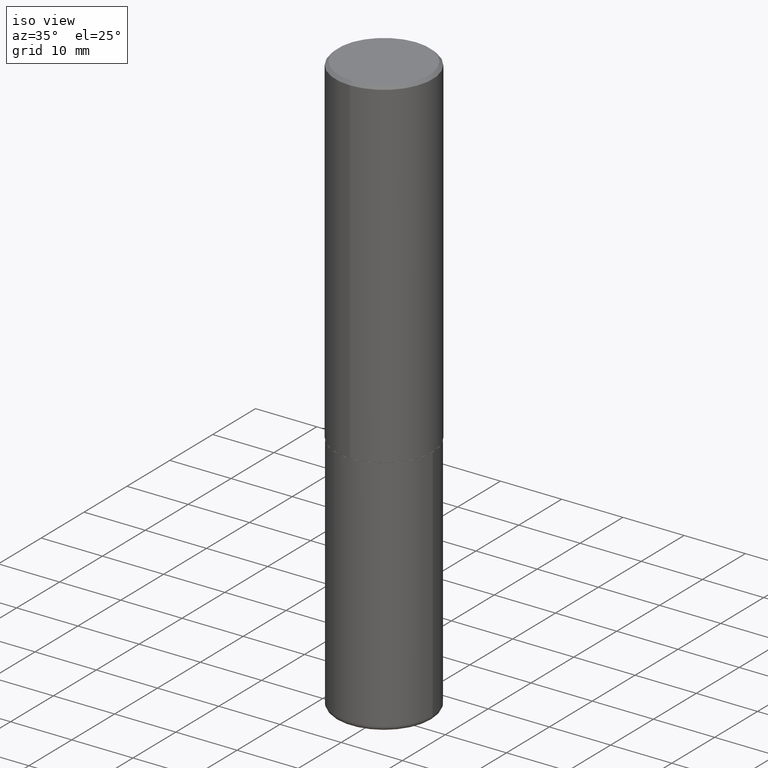
[diagram: clean part render]
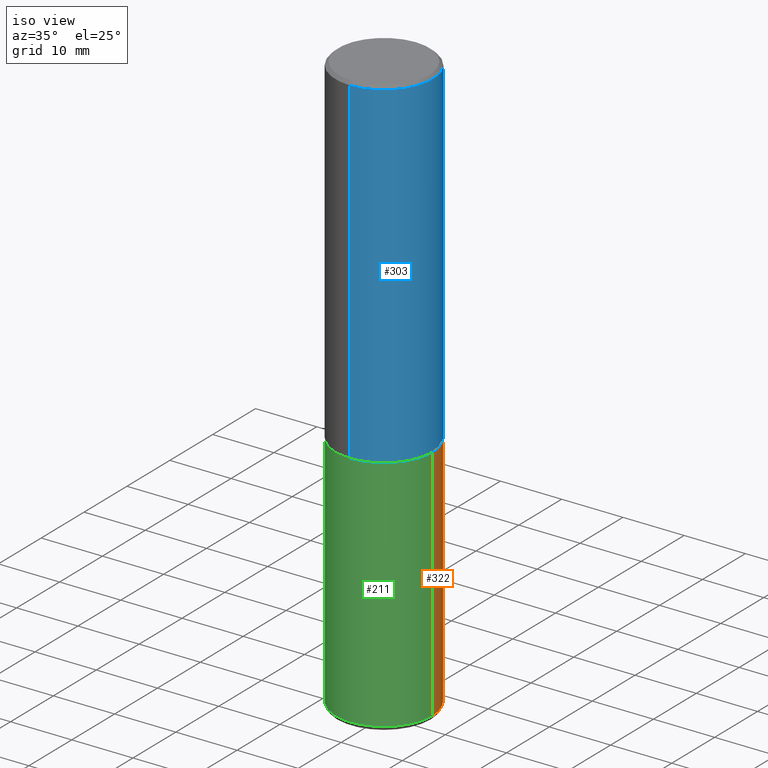
[diagram: same view with three faces highlighted in distinct colors, each labeled with its STEP entity id]
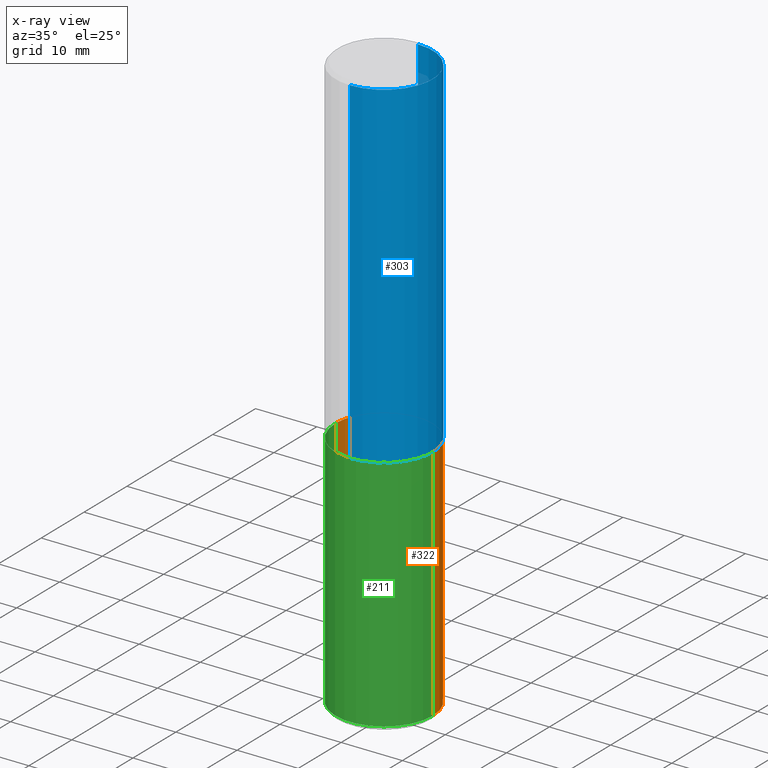
[diagram: x-ray of the same camera — body ghosted, the three highlighted faces saturated]
A machine part, iso view with three faces highlighted in distinct colors.
The next image is the same camera in x-ray (body ghosted, the three faces saturated) — at least one of them is partly hidden behind the body in this view.
Their STEP definitions:

[orange] entity #322 — the highlighted cylindrical surface (partial cylindrical patch) has radius 7.9375 mm, axis along (-0, 0, 1).
#9 = DIRECTION ( 'NONE',  ( -2.445468806185136597E-29, 3.491481338843145583E-15, 1.000000000000000000 ) ) ;
#19 = CIRCLE ( 'NONE', #349, 0.3125000000000000000 ) ;
#34 = AXIS2_PLACEMENT_3D ( 'NONE', #298, #9, #43 ) ;
#35 = ORIENTED_EDGE ( 'NONE', *, *, #240, .T. ) ;
#36 = CARTESIAN_POINT ( 'NONE',  ( 0.3125000000000001665, -1.517048641727345766E-14, -3.719999999999999751 ) ) ;
#38 = CARTESIAN_POINT ( 'NONE',  ( 0.000000000000000000, 0.000000000000000000, 0.000000000000000000 ) ) ;
#43 = DIRECTION ( 'NONE',  ( 1.000000000000000000, -6.982962677686269077E-15, 0.000000000000000000 ) ) ;
#45 = LINE ( 'NONE', #173, #84 ) ;
#71 = CARTESIAN_POINT ( 'NONE',  ( -0.3125000000000000000, -8.092516955357627487E-15, -2.187500000000000000 ) ) ;
#76 = CARTESIAN_POINT ( 'NONE',  ( 0.3125000000000000000, -2.182175836776958347E-15, 1.523805242436230075E-29 ) ) ;
#79 = VERTEX_POINT ( 'NONE', #171 ) ;
#84 = VECTOR ( 'NONE', #295, 39.37007874015748143 ) ;
#90 = EDGE_CURVE ( 'NONE', #129, #258, #300, .T. ) ;
#129 = VERTEX_POINT ( 'NONE', #36 ) ;
#136 = ORIENTED_EDGE ( 'NONE', *, *, #90, .F. ) ;
#137 = CARTESIAN_POINT ( 'NONE',  ( 9.097143959008706481E-29, -1.298831058049649931E-14, -3.719999999999999751 ) ) ;
#149 = VECTOR ( 'NONE', #272, 39.37007874015748143 ) ;
#154 = ORIENTED_EDGE ( 'NONE', *, *, #247, .T. ) ;
#169 = FACE_OUTER_BOUND ( 'NONE', #289, .T. ) ;
#171 = CARTESIAN_POINT ( 'NONE',  ( -0.3125000000000001665, -1.076786453124618465E-14, -3.719999999999999751 ) ) ;
#173 = CARTESIAN_POINT ( 'NONE',  ( -0.3125000000000000000, 2.220446049250313081E-15, -1.537167215704658232E-29 ) ) ;
#199 = DIRECTION ( 'NONE',  ( 1.000000000000000000, -6.982962677686266711E-15, 4.876176775795936353E-29 ) ) ;
#205 = CARTESIAN_POINT ( 'NONE',  ( 0.3125000000000000000, -9.819791265496340172E-15, -2.187500000000000000 ) ) ;
#207 = EDGE_CURVE ( 'NONE', #258, #223, #334, .T. ) ;
#223 = VERTEX_POINT ( 'NONE', #71 ) ;
#235 = DIRECTION ( 'NONE',  ( 1.000000000000000000, -6.982962677686269077E-15, 0.000000000000000000 ) ) ;
#240 = EDGE_CURVE ( 'NONE', #79, #223, #45, .T. ) ;
#247 = EDGE_CURVE ( 'NONE', #129, #79, #19, .T. ) ;
#252 = DIRECTION ( 'NONE',  ( -2.445468806185136597E-29, 3.491481338843145583E-15, 1.000000000000000000 ) ) ;
#258 = VERTEX_POINT ( 'NONE', #205 ) ;
#272 = DIRECTION ( 'NONE',  ( -2.445468806185136877E-29, 3.491481338843145188E-15, 1.000000000000000000 ) ) ;
#286 = CYLINDRICAL_SURFACE ( 'NONE', #358, 0.3125000000000000000 ) ;
#289 = EDGE_LOOP ( 'NONE', ( #154, #35, #329, #136 ) ) ;
#295 = DIRECTION ( 'NONE',  ( -2.445468806185136877E-29, 3.491481338843145188E-15, 1.000000000000000000 ) ) ;
#298 = CARTESIAN_POINT ( 'NONE',  ( 5.349463013529986305E-29, -7.637615428719381825E-15, -2.187500000000000000 ) ) ;
#300 = LINE ( 'NONE', #76, #149 ) ;
#322 = ADVANCED_FACE ( 'NONE', ( #169 ), #286, .T. ) ;
#329 = ORIENTED_EDGE ( 'NONE', *, *, #207, .F. ) ;
#334 = CIRCLE ( 'NONE', #34, 0.3125000000000000000 ) ;
#349 = AXIS2_PLACEMENT_3D ( 'NONE', #137, #402, #235 ) ;
#358 = AXIS2_PLACEMENT_3D ( 'NONE', #38, #252, #199 ) ;
#402 = DIRECTION ( 'NONE',  ( -2.445468806185136597E-29, 3.491481338843145583E-15, 1.000000000000000000 ) ) ;

[blue] entity #303 — the highlighted cylindrical surface (partial cylindrical patch) has radius 7.9375 mm, axis along (-0, 0, 1).
#3 = VERTEX_POINT ( 'NONE', #96 ) ;
#14 = VERTEX_POINT ( 'NONE', #283 ) ;
#44 = ORIENTED_EDGE ( 'NONE', *, *, #403, .F. ) ;
#70 = VERTEX_POINT ( 'NONE', #317 ) ;
#80 = LINE ( 'NONE', #271, #350 ) ;
#85 = EDGE_CURVE ( 'NONE', #3, #70, #319, .T. ) ;
#91 = VERTEX_POINT ( 'NONE', #409 ) ;
#96 = CARTESIAN_POINT ( 'NONE',  ( -2.143905624303602430E-15, -0.3125000000000000000, -0.01999999999999897693 ) ) ;
#98 = DIRECTION ( 'NONE',  ( -2.444624669075078147E-29, 3.492690191230049832E-15, 1.000000000000000000 ) ) ;
#107 = AXIS2_PLACEMENT_3D ( 'NONE', #206, #238, #209 ) ;
#123 = ORIENTED_EDGE ( 'NONE', *, *, #412, .T. ) ;
#152 = ORIENTED_EDGE ( 'NONE', *, *, #256, .T. ) ;
#157 = DIRECTION ( 'NONE',  ( -6.982962677686265133E-15, -1.000000000000000000, 3.492690191230049438E-15 ) ) ;
#202 = CARTESIAN_POINT ( 'NONE',  ( 2.220446049250313475E-15, 0.3125000000000001665, -1.091465684759391066E-15 ) ) ;
#206 = CARTESIAN_POINT ( 'NONE',  ( 5.345171838932658035E-29, -7.636767103124503877E-15, -2.186500000000000110 ) ) ;
#209 = DIRECTION ( 'NONE',  ( -6.982962677686265922E-15, -1.000000000000000000, 3.496765431890253764E-15 ) ) ;
#236 = DIRECTION ( 'NONE',  ( -2.444624669075078147E-29, 3.492690191230049832E-15, 1.000000000000000000 ) ) ;
#238 = DIRECTION ( 'NONE',  ( -2.444624669075078147E-29, 3.492690191230049832E-15, 1.000000000000000000 ) ) ;
#249 = VECTOR ( 'NONE', #366, 39.37007874015748143 ) ;
#256 = EDGE_CURVE ( 'NONE', #14, #70, #364, .T. ) ;
#257 = EDGE_LOOP ( 'NONE', ( #123, #152, #345, #44 ) ) ;
#271 = CARTESIAN_POINT ( 'NONE',  ( -2.182175836776959136E-15, -0.3125000000000001665, 1.091465684759391066E-15 ) ) ;
#283 = CARTESIAN_POINT ( 'NONE',  ( 2.220446049250340691E-15, 0.3124999999999926170, -2.186500000000000998 ) ) ;
#297 = CARTESIAN_POINT ( 'NONE',  ( 4.889249338150173284E-31, -6.985380382460124119E-17, -0.02000000000000006981 ) ) ;
#303 = ADVANCED_FACE ( 'NONE', ( #320 ), #400, .T. ) ;
#310 = AXIS2_PLACEMENT_3D ( 'NONE', #360, #98, #157 ) ;
#317 = CARTESIAN_POINT ( 'NONE',  ( 2.182175836776957953E-15, 0.3124999999999998890, -0.02000000000000116268 ) ) ;
#319 = CIRCLE ( 'NONE', #398, 0.3124999999999999445 ) ;
#320 = FACE_OUTER_BOUND ( 'NONE', #257, .T. ) ;
#345 = ORIENTED_EDGE ( 'NONE', *, *, #85, .F. ) ;
#350 = VECTOR ( 'NONE', #406, 39.37007874015748143 ) ;
#360 = CARTESIAN_POINT ( 'NONE',  ( 0.000000000000000000, 0.000000000000000000, 0.000000000000000000 ) ) ;
#364 = LINE ( 'NONE', #202, #249 ) ;
#365 = DIRECTION ( 'NONE',  ( -6.982962677686265133E-15, -1.000000000000000000, 3.496765431890257708E-15 ) ) ;
#366 = DIRECTION ( 'NONE',  ( -2.444624669075078147E-29, 3.492690191230049832E-15, 1.000000000000000000 ) ) ;
#389 = CIRCLE ( 'NONE', #107, 0.3125000000000002776 ) ;
#398 = AXIS2_PLACEMENT_3D ( 'NONE', #297, #236, #365 ) ;
#400 = CYLINDRICAL_SURFACE ( 'NONE', #310, 0.3125000000000001665 ) ;
#403 = EDGE_CURVE ( 'NONE', #91, #3, #80, .T. ) ;
#406 = DIRECTION ( 'NONE',  ( -2.444624669075078147E-29, 3.492690191230049832E-15, 1.000000000000000000 ) ) ;
#409 = CARTESIAN_POINT ( 'NONE',  ( -2.182175836776906677E-15, -0.3125000000000079381, -2.186499999999998778 ) ) ;
#412 = EDGE_CURVE ( 'NONE', #91, #14, #389, .T. ) ;

[green] entity #211 — the highlighted cylindrical surface (partial cylindrical patch) has radius 7.9375 mm, axis along (-0, 0, 1).
#23 = AXIS2_PLACEMENT_3D ( 'NONE', #330, #112, #168 ) ;
#24 = DIRECTION ( 'NONE',  ( -2.445468806185136597E-29, 3.491481338843145583E-15, 1.000000000000000000 ) ) ;
#36 = CARTESIAN_POINT ( 'NONE',  ( 0.3125000000000001665, -1.517048641727345766E-14, -3.719999999999999751 ) ) ;
#45 = LINE ( 'NONE', #173, #84 ) ;
#47 = CYLINDRICAL_SURFACE ( 'NONE', #23, 0.3125000000000000000 ) ;
#71 = CARTESIAN_POINT ( 'NONE',  ( -0.3125000000000000000, -8.092516955357627487E-15, -2.187500000000000000 ) ) ;
#72 = DIRECTION ( 'NONE',  ( 1.000000000000000000, -6.982962677686269077E-15, 0.000000000000000000 ) ) ;
#74 = ORIENTED_EDGE ( 'NONE', *, *, #90, .T. ) ;
#76 = CARTESIAN_POINT ( 'NONE',  ( 0.3125000000000000000, -2.182175836776958347E-15, 1.523805242436230075E-29 ) ) ;
#79 = VERTEX_POINT ( 'NONE', #171 ) ;
#84 = VECTOR ( 'NONE', #295, 39.37007874015748143 ) ;
#90 = EDGE_CURVE ( 'NONE', #129, #258, #300, .T. ) ;
#99 = ORIENTED_EDGE ( 'NONE', *, *, #347, .F. ) ;
#110 = CARTESIAN_POINT ( 'NONE',  ( 5.349463013529986305E-29, -7.637615428719381825E-15, -2.187500000000000000 ) ) ;
#111 = ORIENTED_EDGE ( 'NONE', *, *, #240, .F. ) ;
#112 = DIRECTION ( 'NONE',  ( -2.445468806185136597E-29, 3.491481338843145583E-15, 1.000000000000000000 ) ) ;
#129 = VERTEX_POINT ( 'NONE', #36 ) ;
#130 = DIRECTION ( 'NONE',  ( 1.000000000000000000, -6.982962677686269077E-15, 0.000000000000000000 ) ) ;
#142 = AXIS2_PLACEMENT_3D ( 'NONE', #332, #24, #130 ) ;
#149 = VECTOR ( 'NONE', #272, 39.37007874015748143 ) ;
#168 = DIRECTION ( 'NONE',  ( 1.000000000000000000, -6.982962677686266711E-15, 4.876176775795936353E-29 ) ) ;
#171 = CARTESIAN_POINT ( 'NONE',  ( -0.3125000000000001665, -1.076786453124618465E-14, -3.719999999999999751 ) ) ;
#172 = EDGE_LOOP ( 'NONE', ( #111, #384, #74, #99 ) ) ;
#173 = CARTESIAN_POINT ( 'NONE',  ( -0.3125000000000000000, 2.220446049250313081E-15, -1.537167215704658232E-29 ) ) ;
#205 = CARTESIAN_POINT ( 'NONE',  ( 0.3125000000000000000, -9.819791265496340172E-15, -2.187500000000000000 ) ) ;
#211 = ADVANCED_FACE ( 'NONE', ( #333 ), #47, .T. ) ;
#223 = VERTEX_POINT ( 'NONE', #71 ) ;
#240 = EDGE_CURVE ( 'NONE', #79, #223, #45, .T. ) ;
#243 = CIRCLE ( 'NONE', #142, 0.3125000000000000000 ) ;
#250 = AXIS2_PLACEMENT_3D ( 'NONE', #110, #363, #72 ) ;
#258 = VERTEX_POINT ( 'NONE', #205 ) ;
#272 = DIRECTION ( 'NONE',  ( -2.445468806185136877E-29, 3.491481338843145188E-15, 1.000000000000000000 ) ) ;
#288 = EDGE_CURVE ( 'NONE', #79, #129, #243, .T. ) ;
#295 = DIRECTION ( 'NONE',  ( -2.445468806185136877E-29, 3.491481338843145188E-15, 1.000000000000000000 ) ) ;
#300 = LINE ( 'NONE', #76, #149 ) ;
#330 = CARTESIAN_POINT ( 'NONE',  ( 0.000000000000000000, 0.000000000000000000, 0.000000000000000000 ) ) ;
#332 = CARTESIAN_POINT ( 'NONE',  ( 9.097143959008706481E-29, -1.298831058049649931E-14, -3.719999999999999751 ) ) ;
#333 = FACE_OUTER_BOUND ( 'NONE', #172, .T. ) ;
#347 = EDGE_CURVE ( 'NONE', #223, #258, #414, .T. ) ;
#363 = DIRECTION ( 'NONE',  ( -2.445468806185136597E-29, 3.491481338843145583E-15, 1.000000000000000000 ) ) ;
#384 = ORIENTED_EDGE ( 'NONE', *, *, #288, .T. ) ;
#414 = CIRCLE ( 'NONE', #250, 0.3125000000000000000 ) ;